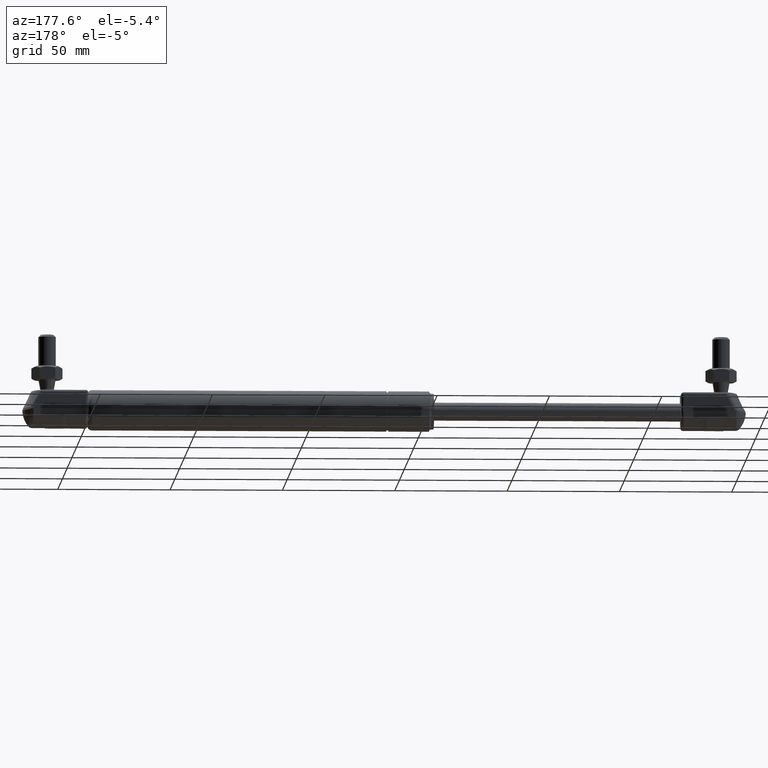
[diagram: clean part render]
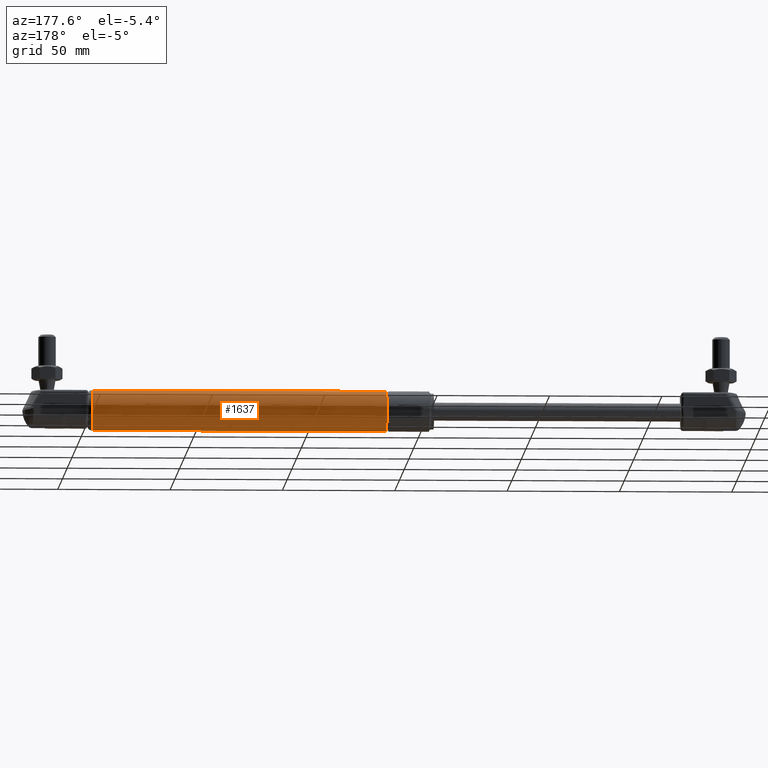
[diagram: same view with one face highlighted and labeled with its STEP entity id]
A machine part, auxiliary view. The second image highlights one B-rep face of the part: STEP entity #1637.
In plain terms, the highlighted cylindrical surface (bore or boss wall) has radius 9 mm, axis along (1, 0, -0).
Its self-contained STEP definition (entity closure, byte-faithful):
#300=CYLINDRICAL_SURFACE('',#1778,9.00000000000001);
#337=FACE_BOUND('',#513,.T.);
#382=FACE_OUTER_BOUND('',#512,.T.);
#512=EDGE_LOOP('',(#1130));
#513=EDGE_LOOP('',(#1131));
#635=CIRCLE('',#1741,9.00000000000001);
#653=CIRCLE('',#1776,9.00000000000001);
#715=VERTEX_POINT('',#2345);
#733=VERTEX_POINT('',#2398);
#873=EDGE_CURVE('',#715,#715,#635,.T.);
#891=EDGE_CURVE('',#733,#733,#653,.T.);
#1130=ORIENTED_EDGE('',*,*,#873,.T.);
#1131=ORIENTED_EDGE('',*,*,#891,.F.);
#1637=ADVANCED_FACE('',(#382,#337),#300,.T.);
#1741=AXIS2_PLACEMENT_3D('',#2346,#1927,#1928);
#1776=AXIS2_PLACEMENT_3D('',#2399,#1997,#1998);
#1778=AXIS2_PLACEMENT_3D('',#2402,#2001,#2002);
#1927=DIRECTION('center_axis',(1.,0.,-1.20871055100319E-16));
#1928=DIRECTION('ref_axis',(1.22464679914735E-16,0.,1.));
#1997=DIRECTION('center_axis',(1.,0.,-1.22464679914735E-16));
#1998=DIRECTION('ref_axis',(-1.2335811384724E-16,-1.22464679914735E-16,
-1.));
#2001=DIRECTION('center_axis',(1.,0.,-1.22464679914735E-16));
#2002=DIRECTION('ref_axis',(1.22464679914735E-16,0.,1.));
#2345=CARTESIAN_POINT('',(21.,1.10218211923262E-15,-9.00000000000002));
#2346=CARTESIAN_POINT('Origin',(21.,0.,-2.57175827820944E-15));
#2398=CARTESIAN_POINT('',(152.,0.,9.));
#2399=CARTESIAN_POINT('Origin',(152.,0.,-1.86146313470398E-14));
#2402=CARTESIAN_POINT('Origin',(77.9999999999999,0.,-9.55224503334935E-15));